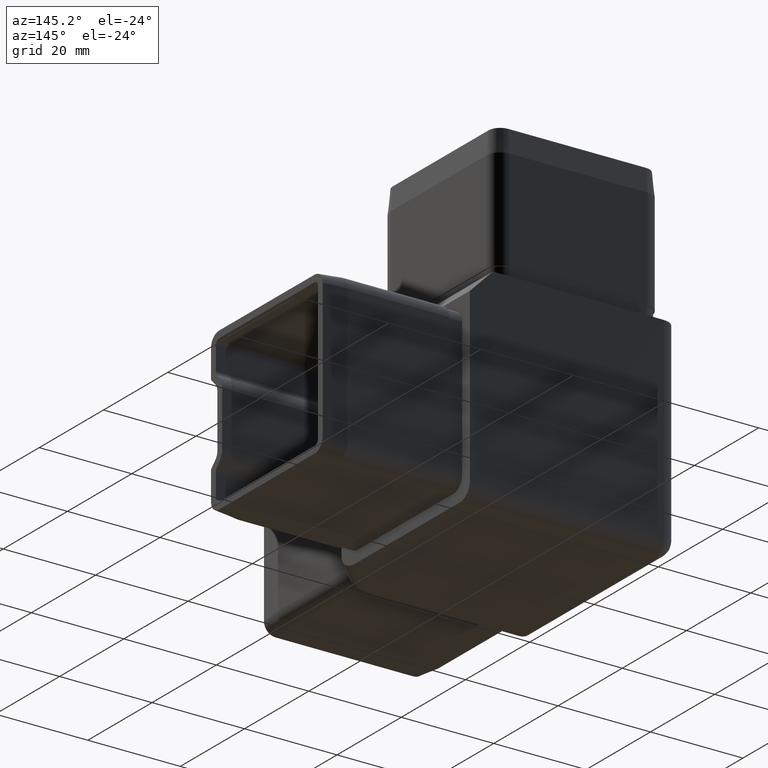
[diagram: clean part render]
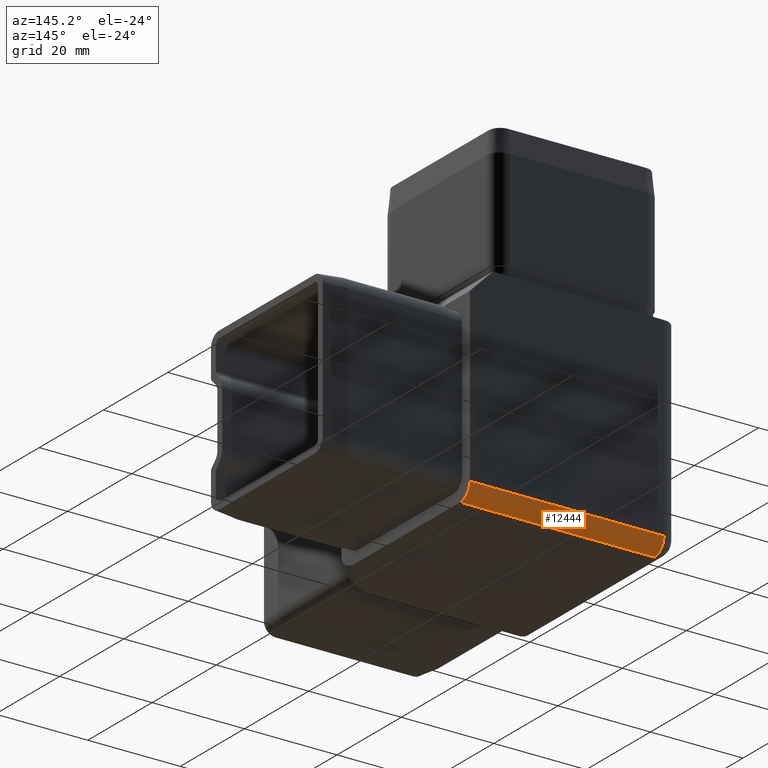
[diagram: same view with one face highlighted and labeled with its STEP entity id]
A machine part, auxiliary view. The second image highlights one B-rep face of the part: STEP entity #12444.
In plain terms, the highlighted cylindrical surface (edge-blend (fillet) strip) has radius 3 mm, axis along (-1, 0, 0).
Its self-contained STEP definition (entity closure, byte-faithful):
#28 = CARTESIAN_POINT ( 'NONE',  ( -22.50000000000000000, 19.49999999999999600, -19.49999999999999600 ) ) ;
#847 = EDGE_CURVE ( 'NONE', #6020, #5951, #8773, .T. ) ;
#2017 = DIRECTION ( 'NONE',  ( -1.000000000000000000, 0.0000000000000000000, 0.0000000000000000000 ) ) ;
#2270 = ORIENTED_EDGE ( 'NONE', *, *, #10820, .F. ) ;
#2854 = LINE ( 'NONE', #9949, #4755 ) ;
#2894 = VERTEX_POINT ( 'NONE', #11410 ) ;
#3576 = DIRECTION ( 'NONE',  ( 0.0000000000000000000, 0.0000000000000000000, 1.000000000000000000 ) ) ;
#3581 = AXIS2_PLACEMENT_3D ( 'NONE', #28, #17173, #14509 ) ;
#4345 = CIRCLE ( 'NONE', #11866, 2.999999999999999100 ) ;
#4755 = VECTOR ( 'NONE', #2017, 1000.000000000000000 ) ;
#5309 = ORIENTED_EDGE ( 'NONE', *, *, #10465, .F. ) ;
#5421 = DIRECTION ( 'NONE',  ( 1.000000000000000000, 1.541976423090495400E-016, -0.0000000000000000000 ) ) ;
#5951 = VERTEX_POINT ( 'NONE', #10383 ) ;
#6020 = VERTEX_POINT ( 'NONE', #13041 ) ;
#7865 = EDGE_CURVE ( 'NONE', #5951, #10835, #10205, .T. ) ;
#8773 = LINE ( 'NONE', #12367, #16691 ) ;
#9608 = AXIS2_PLACEMENT_3D ( 'NONE', #10733, #5421, #12211 ) ;
#9949 = CARTESIAN_POINT ( 'NONE',  ( -22.50000000000000000, 22.49999999999999600, -19.49999999999999600 ) ) ;
#10029 = DIRECTION ( 'NONE',  ( -1.000000000000000000, 0.0000000000000000000, 0.0000000000000000000 ) ) ;
#10205 = CIRCLE ( 'NONE', #9608, 2.999999999999999100 ) ;
#10382 = ORIENTED_EDGE ( 'NONE', *, *, #7865, .F. ) ;
#10383 = CARTESIAN_POINT ( 'NONE',  ( 22.50000000000000000, 19.49999999999999600, -22.50000000000000000 ) ) ;
#10465 = EDGE_CURVE ( 'NONE', #2894, #6020, #4345, .T. ) ;
#10733 = CARTESIAN_POINT ( 'NONE',  ( 22.50000000000000000, 19.49999999999999600, -19.49999999999999600 ) ) ;
#10820 = EDGE_CURVE ( 'NONE', #10835, #2894, #2854, .T. ) ;
#10835 = VERTEX_POINT ( 'NONE', #15252 ) ;
#11276 = CARTESIAN_POINT ( 'NONE',  ( -19.50000000000000000, 19.49999999999999600, -19.49999999999999600 ) ) ;
#11410 = CARTESIAN_POINT ( 'NONE',  ( -19.50000000000000000, 22.49999999999999600, -19.49999999999999600 ) ) ;
#11866 = AXIS2_PLACEMENT_3D ( 'NONE', #11276, #10029, #3576 ) ;
#12081 = EDGE_LOOP ( 'NONE', ( #10382, #13126, #5309, #2270 ) ) ;
#12211 = DIRECTION ( 'NONE',  ( 0.0000000000000000000, -1.000000000000000000, 0.0000000000000000000 ) ) ;
#12367 = CARTESIAN_POINT ( 'NONE',  ( 0.0000000000000000000, 19.49999999999999600, -22.50000000000000000 ) ) ;
#12444 = ADVANCED_FACE ( 'NONE', ( #13849 ), #16531, .T. ) ;
#13041 = CARTESIAN_POINT ( 'NONE',  ( -19.50000000000000000, 19.49999999999999600, -22.50000000000000000 ) ) ;
#13126 = ORIENTED_EDGE ( 'NONE', *, *, #847, .F. ) ;
#13849 = FACE_OUTER_BOUND ( 'NONE', #12081, .T. ) ;
#14509 = DIRECTION ( 'NONE',  ( 0.0000000000000000000, 0.0000000000000000000, 1.000000000000000000 ) ) ;
#15252 = CARTESIAN_POINT ( 'NONE',  ( 22.50000000000000000, 22.49999999999999600, -19.49999999999998200 ) ) ;
#16531 = CYLINDRICAL_SURFACE ( 'NONE', #3581, 2.999999999999999100 ) ;
#16691 = VECTOR ( 'NONE', #16717, 1000.000000000000000 ) ;
#16717 = DIRECTION ( 'NONE',  ( 1.000000000000000000, -0.0000000000000000000, 0.0000000000000000000 ) ) ;
#17173 = DIRECTION ( 'NONE',  ( -1.000000000000000000, 0.0000000000000000000, 0.0000000000000000000 ) ) ;